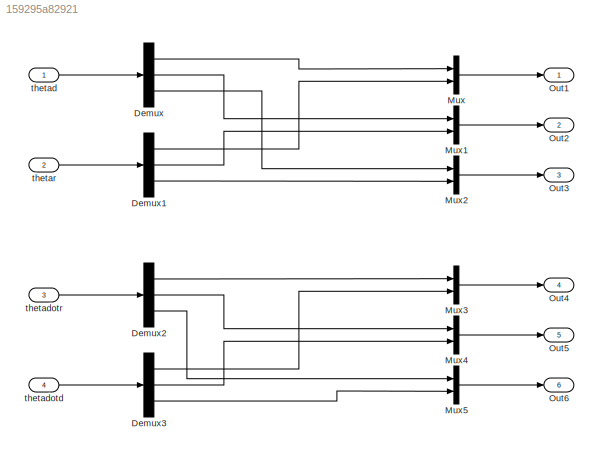
MODEL slx_159295a82921
KIND model
CONFIG AbsTol = auto
CONFIG EnableMultiTasking = off
CONFIG FixedStep = auto
CONFIG MaxStep = auto
CONFIG MinStep = auto
CONFIG RelTol = 1e-3
CONFIG SampleTimeConstraint = Unconstrained
CONFIG SolverName = VariableStepAuto
CONFIG StartTime = 0.0
CONFIG StopTime = 10.0
BLOCK [Demux] Demux
  Outputs = 3
  Ports = [1, 3]
BLOCK [Demux] Demux1
  Outputs = 3
  Ports = [1, 3]
BLOCK [Demux] Demux2
  Outputs = 3
  Ports = [1, 3]
BLOCK [Demux] Demux3
  Outputs = 3
  Ports = [1, 3]
BLOCK [Mux] Mux
  DisplayOption = bar
  Inputs = 2
  Ports = [2, 1]
BLOCK [Mux] Mux1
  DisplayOption = bar
  Inputs = 2
  Ports = [2, 1]
BLOCK [Mux] Mux2
  DisplayOption = bar
  Inputs = 2
  Ports = [2, 1]
BLOCK [Mux] Mux3
  DisplayOption = bar
  Inputs = 2
  Ports = [2, 1]
BLOCK [Mux] Mux4
  DisplayOption = bar
  Inputs = 2
  Ports = [2, 1]
BLOCK [Mux] Mux5
  DisplayOption = bar
  Inputs = 2
  Ports = [2, 1]
BLOCK [Outport] Out1
BLOCK [Outport] Out2
  Port = 2
BLOCK [Outport] Out3
  Port = 3
BLOCK [Outport] Out4
  Port = 4
BLOCK [Outport] Out5
  Port = 5
BLOCK [Outport] Out6
  Port = 6
BLOCK [Inport] thetad
BLOCK [Inport] thetadotd
  Port = 4
BLOCK [Inport] thetadotr
  Port = 3
BLOCK [Inport] thetar
  Port = 2
LINE Demux1:1 -> Mux:2
LINE Demux1:2 -> Mux1:2
LINE Demux1:3 -> Mux2:2
LINE Demux2:1 -> Mux3:1
LINE Demux2:2 -> Mux4:1
LINE Demux2:3 -> Mux5:1
LINE Demux3:1 -> Mux3:2
LINE Demux3:2 -> Mux4:2
LINE Demux3:3 -> Mux5:2
LINE Demux:1 -> Mux:1
LINE Demux:2 -> Mux1:1
LINE Demux:3 -> Mux2:1
LINE Mux1:1 -> Out2:1
LINE Mux2:1 -> Out3:1
LINE Mux3:1 -> Out4:1
LINE Mux4:1 -> Out5:1
LINE Mux5:1 -> Out6:1
LINE Mux:1 -> Out1:1
LINE thetad:1 -> Demux:1
LINE thetadotd:1 -> Demux3:1
LINE thetadotr:1 -> Demux2:1
LINE thetar:1 -> Demux1:1
